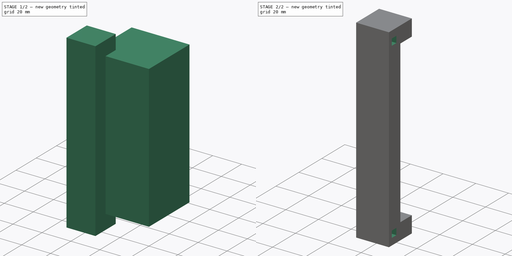
[diagram: build sequence overview — one tinted view per stage of 2, left to right]
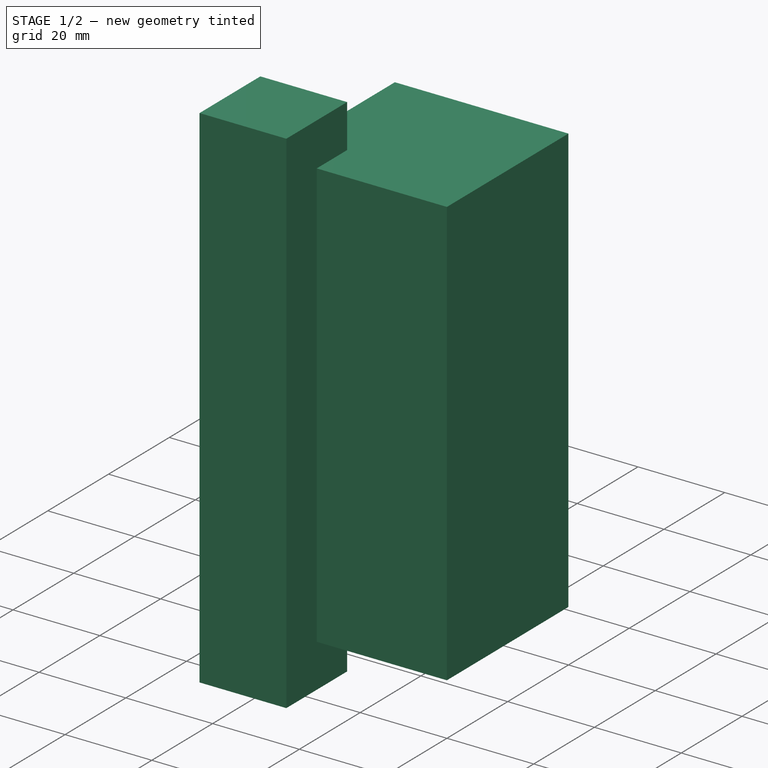
[diagram: stage 1 of 2 — iso view after this stage's code; geometry added in this stage tinted green]
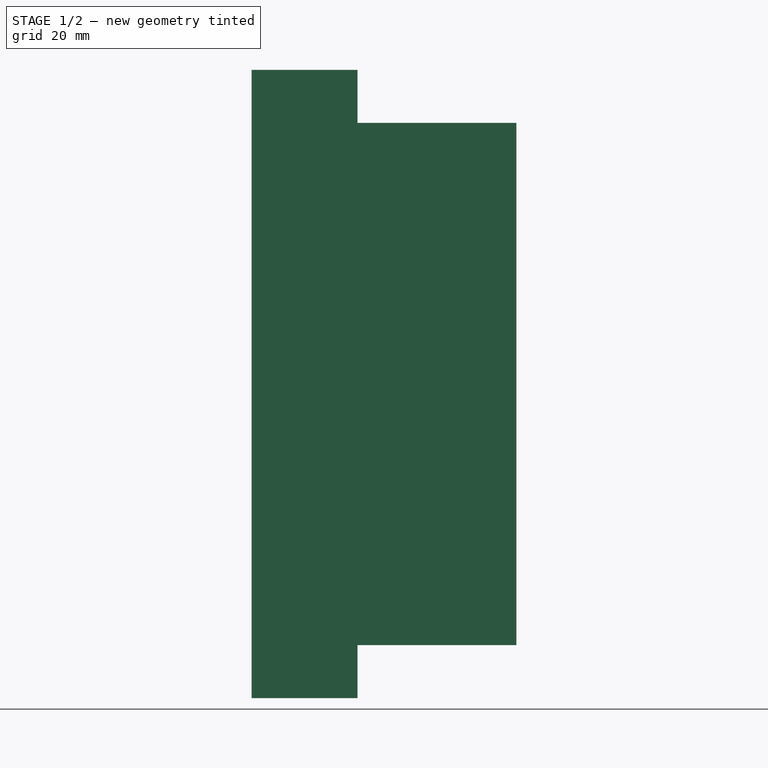
[diagram: stage 1 of 2 — front view after this stage's code; geometry added in this stage tinted green]
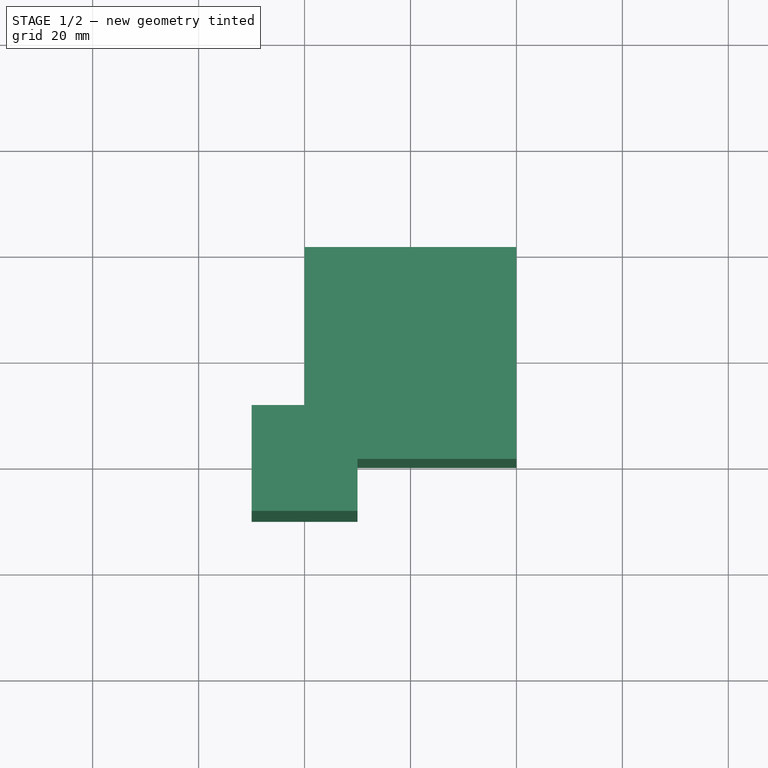
[diagram: stage 1 of 2 — top view after this stage's code; geometry added in this stage tinted green]
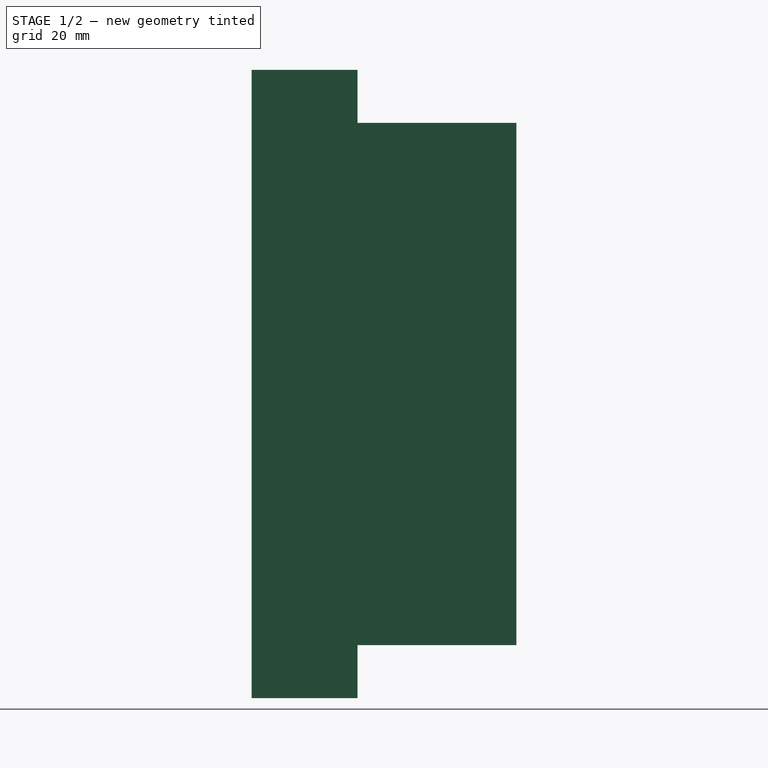
[diagram: stage 1 of 2 — right view after this stage's code; geometry added in this stage tinted green]
FCSTD DOCUMENT  (FreeCAD 0.15R4606 (Git))
Label: battery_chinstrap
License: All rights reserved
LicenseURL: http://en.wikipedia.org/wiki/All_rights_reserved
objects: Part::Box×2, Part::Cut×1, Sketcher::SketchObject×1, PartDesign::Pocket×1
note: 6 computed .brp shape members not serialized (recipe doc carries the construction recipe); baked Part::Feature solids carry a one-line shape summary decoded from their .brp

FEATURE [Part::Box] Box  label="Battery Hole"
  Height = 98.6
  Length = 40
  Placement = pos=(0,0,10) rot=(0,0,1;0rad)
  Width = 40
FEATURE [Part::Box] Box001  label="Cube"
  Height = 118.6
  Length = 20
  Placement = pos=(-10,-10,0) rot=(0,0,1;0rad)
  Width = 20
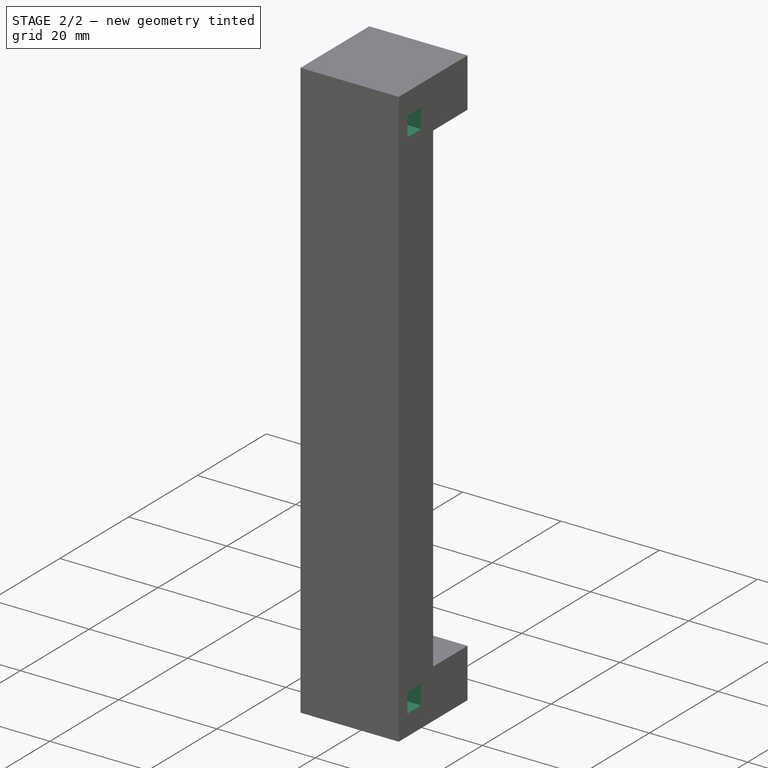
[diagram: stage 2 of 2 — iso view after this stage's code; geometry added in this stage tinted green]
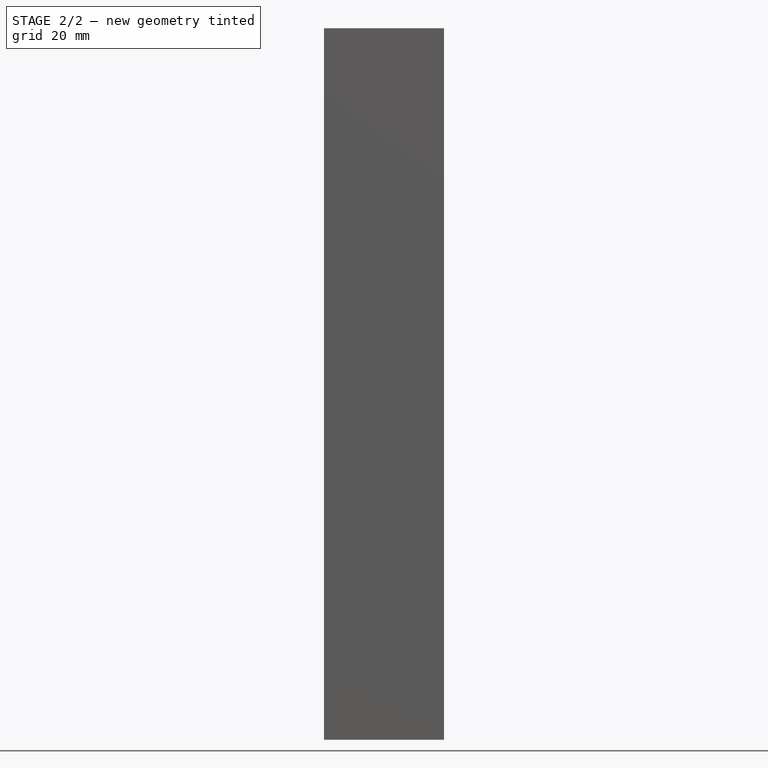
[diagram: stage 2 of 2 — front view after this stage's code; geometry added in this stage tinted green]
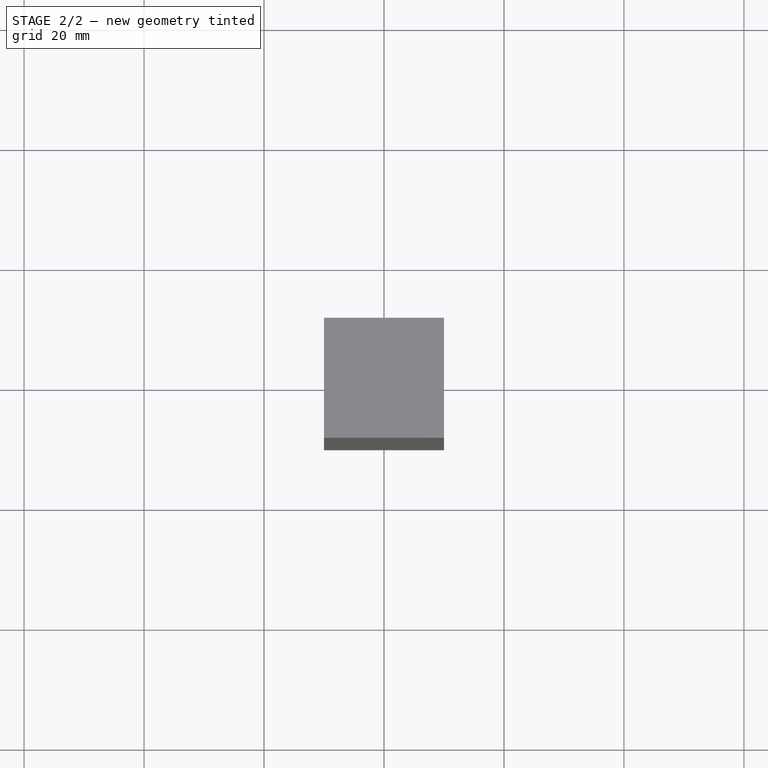
[diagram: stage 2 of 2 — top view after this stage's code; geometry added in this stage tinted green]
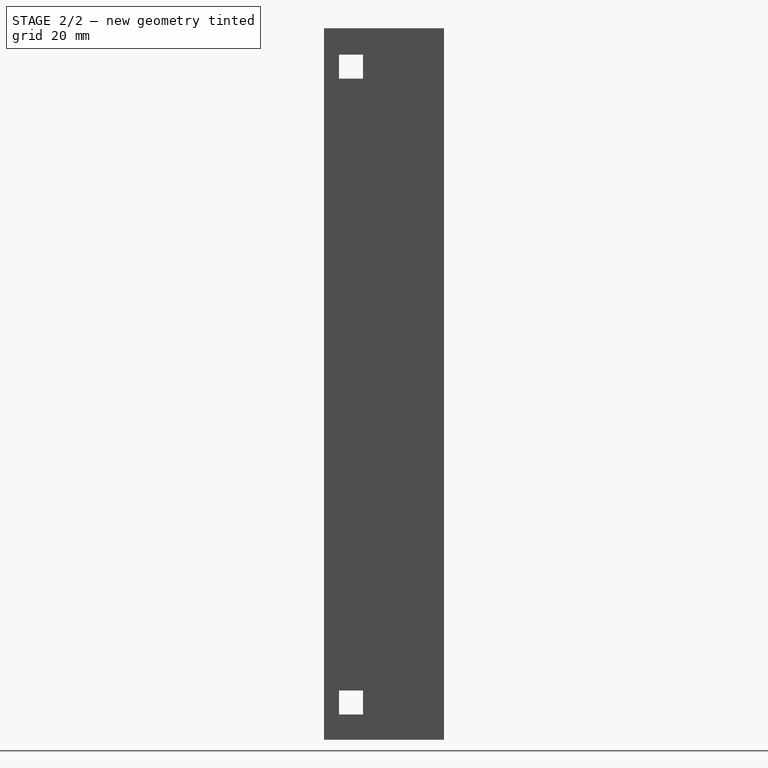
[diagram: stage 2 of 2 — right view after this stage's code; geometry added in this stage tinted green]
FEATURE [Part::Cut] Cut
  Base = -> Box001
  Tool = -> Box
FEATURE [Sketcher::SketchObject] Sketch
  Placement = pos=(10,0,0) rot=(0.57735,0.57735,0.57735;2.0944rad)
  Support = -> Cut [Face6]
  sketch-geometry (8):
    g0: LineSegment StartX=-7.5 StartY=114.2 StartZ=0 EndX=-3.5 EndY=114.2 EndZ=0
    g1: LineSegment StartX=-3.5 StartY=114.2 StartZ=0 EndX=-3.5 EndY=110.2 EndZ=0
    g2: LineSegment StartX=-3.5 StartY=110.2 StartZ=0 EndX=-7.5 EndY=110.2 EndZ=0
    g3: LineSegment StartX=-7.5 StartY=110.2 StartZ=0 EndX=-7.5 EndY=114.2 EndZ=0
    g4: LineSegment StartX=-7.5 StartY=8.2 StartZ=0 EndX=-3.5 EndY=8.2 EndZ=0
    g5: LineSegment StartX=-3.5 StartY=8.2 StartZ=0 EndX=-3.5 EndY=4.2 EndZ=0
    g6: LineSegment StartX=-3.5 StartY=4.2 StartZ=0 EndX=-7.5 EndY=4.2 EndZ=0
    g7: LineSegment StartX=-7.5 StartY=4.2 StartZ=0 EndX=-7.5 EndY=8.2 EndZ=0
  constraints (24):
    c: Coincident(g0,g1)
    c: Coincident(g1,g2)
    c: Coincident(g2,g3)
    c: Coincident(g3,g0)
    c: Horizontal(g0)
    c: Horizontal(g2)
    c: Vertical(g1)
    c: Vertical(g3)
    c: Coincident(g4,g5)
    c: Coincident(g5,g6)
    c: Coincident(g6,g7)
    c: Coincident(g7,g4)
    c: Horizontal(g4)
    c: Horizontal(g6)
    c: Vertical(g5)
    c: Vertical(g7)
    c: Equal(g4,g5)
    c: Equal(g5,g0)
    c: Equal(g0,g1)
    c: Distance(g7) = 4
    c: DistanceY(g2,g4) = -102
    c: DistanceX(g4,g2) = 0
    c: DistanceX(g-1,g5) = -3.5
    c: DistanceY(g-1,g5) = 4.2
FEATURE [PartDesign::Pocket] Pocket
  Length = 30
  Sketch = -> Sketch
  Type = 0
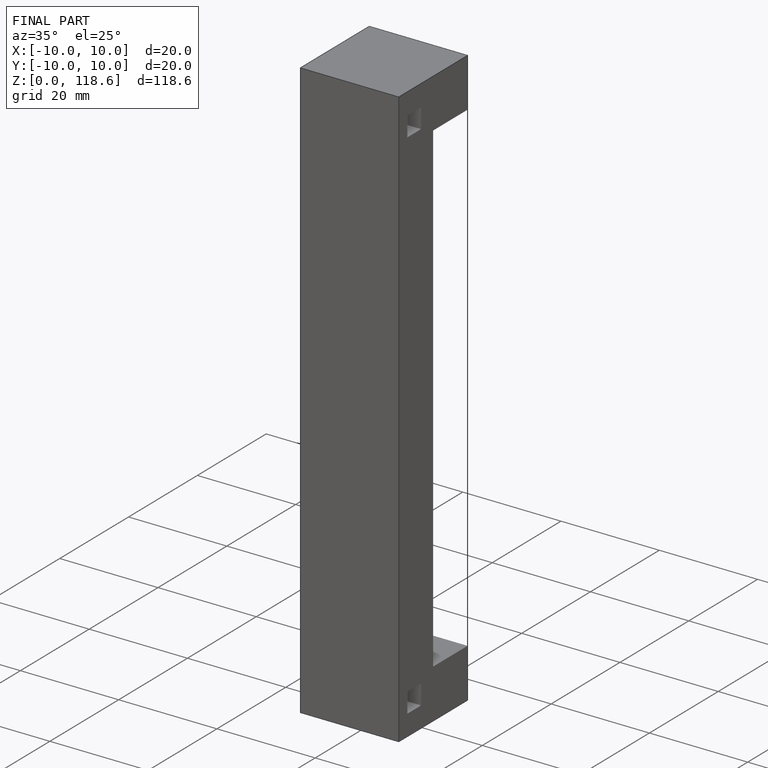
[diagram: finished part — iso view with bounding-box wireframe]
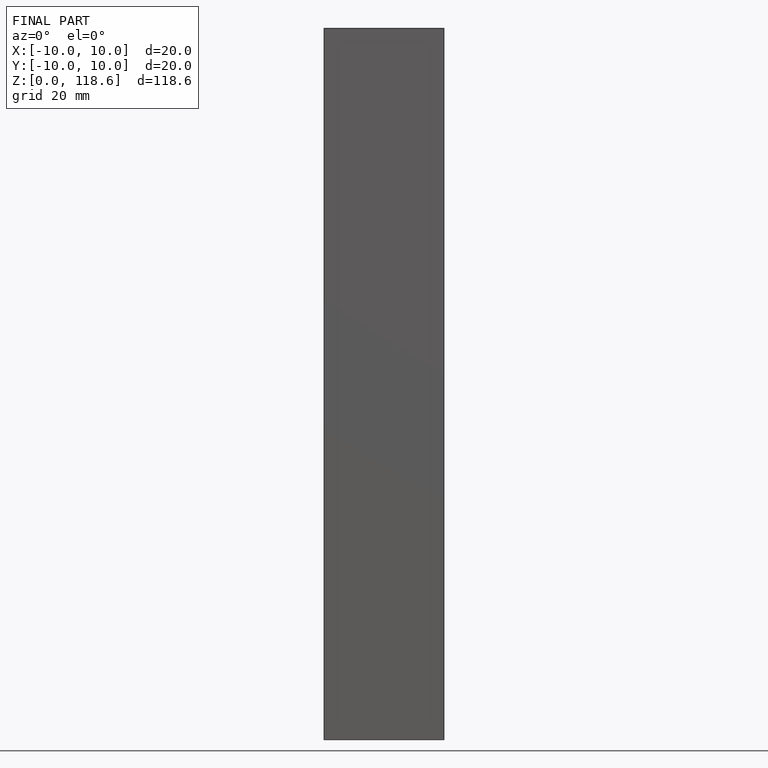
[diagram: finished part — front view with bounding-box wireframe]
